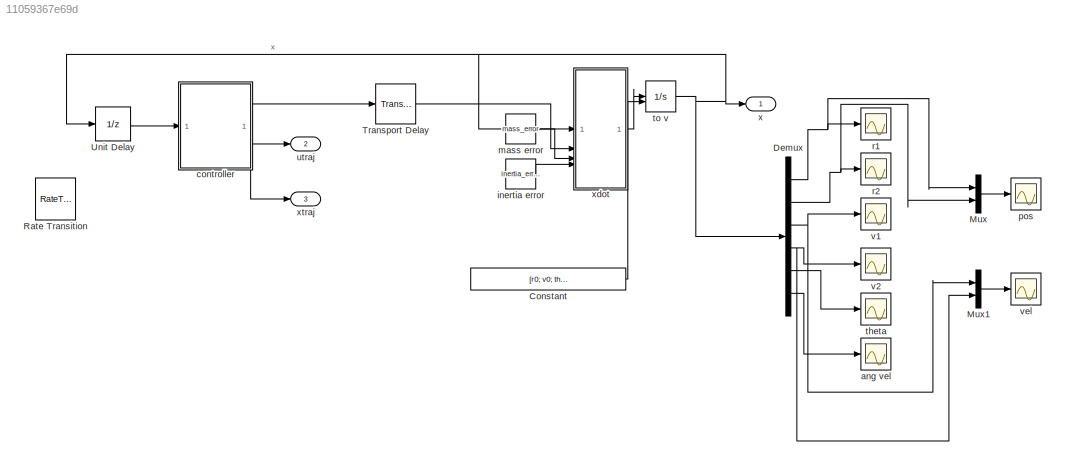
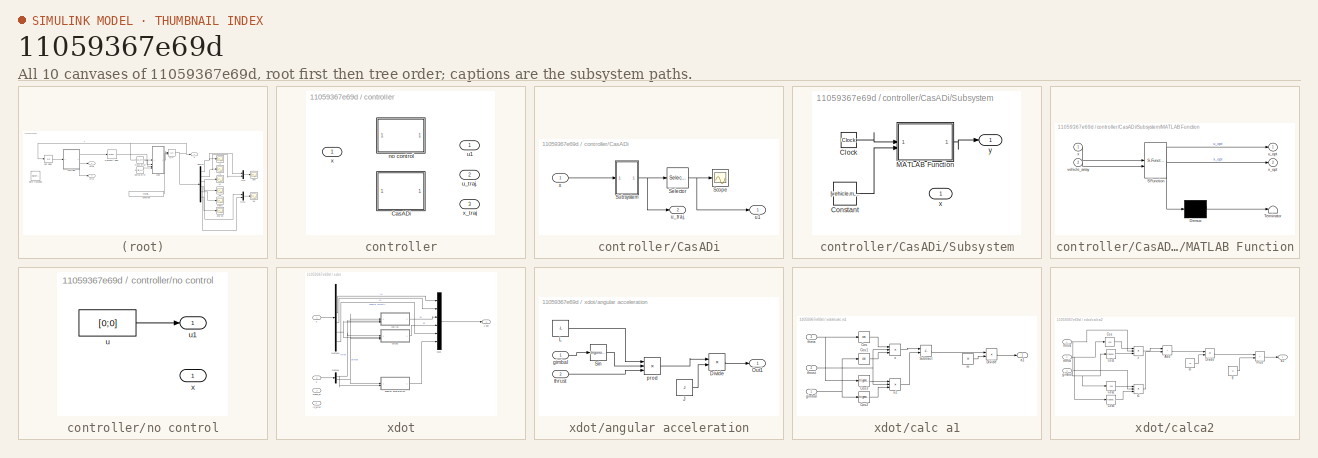
[diagram: thumbnail index - all 10 canvases of the model, root first then tree order]
MODEL slx_11059367e69d
KIND model
CONFIG AbsTol = auto
CONFIG EnableMultiTasking = off
CONFIG FixedStep = auto
CONFIG MaxStep = auto
CONFIG MinStep = auto
CONFIG RelTol = 1e-3
CONFIG SampleTimeConstraint = Unconstrained
CONFIG SolverName = VariableStepAuto
CONFIG StartTime = 0.0
CONFIG StopTime = 10.0
WORKSPACE source: mxarray member
WORKSPACE J = 1
WORKSPACE L = 1
WORKSPACE controller_type = []
WORKSPACE dtime = 0.01
WORKSPACE g = -9.8
WORKSPACE inertia_error = 0
WORKSPACE m = 1
WORKSPACE mass_error = 0
WORKSPACE optimization_time = 1
WORKSPACE r0 = [0 10]
WORKSPACE theta0 = 1.57079632679
WORKSPACE u0 = [9.8 0]
WORKSPACE v0 = [0 0]
WORKSPACE vehicle: object (value not decoded)
WORKSPACE w0 = 0
WORKSPACE x0 = 1
BLOCK [Constant] Constant
  Value = [r0; v0; theta0; w0]
BLOCK [Demux] Demux
  Outputs = 6
BLOCK [Mux] Mux
  DisplayOption = bar
  Inputs = 2
BLOCK [Mux] Mux1
  DisplayOption = bar
  Inputs = 2
BLOCK [RateTransition] Rate Transition
BLOCK [TransportDelay] Transport Delay
  DelayTime = optimization_time
  InitialOutput = u0
BLOCK [UnitDelay] Unit Delay
  HasFrameUpgradeWarning = on
  SampleTime = dtime
BLOCK [Scope] ang vel
  Floating = off
  NumInputPorts = 1
  ScopeSpecificationString = Simulink.scopes.TimeScopeBlockCfg('CurrentConfiguration', extmgr.ConfigurationSet(extmgr.Configuration('Core','General UI',true),extmgr.Configuration('Core','Source UI',true),extmgr.Configuration('Sources','WiredSimulink',true,'DataLoggingVariableName','ScopeData5'),extmgr.Configuration('Visuals','Time Domain',true,'SerializedDisplays',{struct('MinYLimReal','-1.00000','MaxYLimReal','1.00000','YLab...<+1455ch>
BLOCK [SubSystem] controller
  AllowZeroVariantControls = on
  PortSchema = {"entries":[{"content":{"sides":[{"content":{"connectorIds":["In1"]},"type":"ConnectorPlacement.EquallySpacedRectSide","uuid":"f7e8d604-ec29-4974-b1c0-93749a713244"},{"content":{"connectorIds":["Out1","Out2"],"side":"RIGHT"},"type":"ConnectorPlacement.EquallySpacedRectSide","uuid":"9418be0b-a493-45e6-a60f-5ee9e86d02f9"},{"content":{"side":"TOP"},"type":"ConnectorPlacement.EquallySpacedRectSide","u...<+379ch>
  Variant = on
  VariantControl = controller
BLOCK [SubSystem] controller/CasADi
  VariantControl = controller_type == ControllerType.CASADI
BLOCK [Scope] controller/CasADi/Scope
  Floating = off
  NumInputPorts = 1
  ScopeSpecificationString = Simulink.scopes.TimeScopeBlockCfg('CurrentConfiguration', extmgr.ConfigurationSet(extmgr.Configuration('Core','General UI',true),extmgr.Configuration('Core','Source UI',true),extmgr.Configuration('Sources','WiredSimulink',true,'DataLoggingVariableName','ScopeData1'),extmgr.Configuration('Visuals','Time Domain',true,'SerializedDisplays',{struct('MinYLimReal','-2.5','MaxYLimReal','12.5','YLabelReal'...<+1451ch>
BLOCK [Selector] controller/CasADi/Selector
  IndexOptions = Index vector (dialog),Select all
  Indices = [1],1
  InputPortWidth = 3
  NumberOfDimensions = 2
  OutputSizes = 1,1
BLOCK [SubSystem] controller/CasADi/Subsystem
BLOCK [Clock] controller/CasADi/Subsystem/Clock
BLOCK [Constant] controller/CasADi/Subsystem/Constant
  Value = [vehicle.m, vehicle.L, vehicle.max_gimbal, vehicle.min_thrust, vehicle.max_thrust]
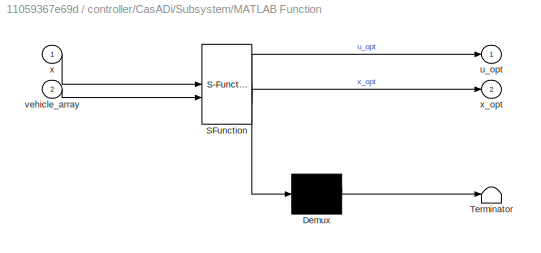
BLOCK [SubSystem] controller/CasADi/Subsystem/MATLAB Function
  ErrorFcn = Stateflow.Translate.translate
  PermitHierarchicalResolution = ExplicitOnly
  SFBlockType = MATLAB Function
  TreatAsAtomicUnit = on
BLOCK [Demux] controller/CasADi/Subsystem/MATLAB Function/ Demux 
  Outputs = 1
BLOCK [S-Function] controller/CasADi/Subsystem/MATLAB Function/ SFunction 
  EnableBusSupport = on
  FunctionName = sf_sfun
  PortCounts = [2 3]
  SFcnIsStateOwnerBlock = off
  SFunctionDeploymentMode = off
  Tag = Stateflow S-Function 2
BLOCK [Terminator] controller/CasADi/Subsystem/MATLAB Function/ Terminator 
BLOCK [Outport] controller/CasADi/Subsystem/MATLAB Function/u_opt
BLOCK [Inport] controller/CasADi/Subsystem/MATLAB Function/vehicle_array
  Port = 2
BLOCK [Inport] controller/CasADi/Subsystem/MATLAB Function/x
BLOCK [Outport] controller/CasADi/Subsystem/MATLAB Function/x_opt
  Port = 2
BLOCK [Inport] controller/CasADi/Subsystem/x
BLOCK [Outport] controller/CasADi/Subsystem/y
BLOCK [Outport] controller/CasADi/u1
BLOCK [Outport] controller/CasADi/u_traj.
  Port = 2
BLOCK [Inport] controller/CasADi/x
BLOCK [SubSystem] controller/no control
  VariantControl = controller_type == ControllerType.NO_CONTROL
BLOCK [Constant] controller/no control/u
  Value = [0;0]
BLOCK [Outport] controller/no control/u1
BLOCK [Inport] controller/no control/x
BLOCK [Outport] controller/u1
BLOCK [Outport] controller/u_traj.
  Port = 2
BLOCK [Inport] controller/x
BLOCK [Outport] controller/x_traj
  Port = 3
BLOCK [Constant] inertia error
  Value = inertia_error
BLOCK [Constant] mass error
  Value = mass_error
BLOCK [Scope] pos
  Floating = off
  NumInputPorts = 1
  ScopeSpecificationString = Simulink.scopes.TimeScopeBlockCfg('CurrentConfiguration', extmgr.ConfigurationSet(extmgr.Configuration('Core','General UI',true),extmgr.Configuration('Core','Source UI',true),extmgr.Configuration('Sources','WiredSimulink',true,'DataLoggingVariableName','ScopeData2'),extmgr.Configuration('Visuals','Time Domain',true,'SerializedDisplays',{struct('MinYLimReal','-74.14755','MaxYLimReal','667.32794','Y...<+1475ch>
BLOCK [Scope] r1
  Floating = off
  NumInputPorts = 1
  ScopeSpecificationString = Simulink.scopes.TimeScopeBlockCfg('CurrentConfiguration', extmgr.ConfigurationSet(extmgr.Configuration('Core','General UI',true),extmgr.Configuration('Core','Source UI',true),extmgr.Configuration('Sources','WiredSimulink',true),extmgr.Configuration('Visuals','Time Domain',true,'SerializedDisplays',{struct('MinYLimReal','-1.00000','MaxYLimReal','1.00000','YLabelReal','','MinYLimMag','0.00000','MaxY...<+1416ch>
BLOCK [Scope] r2
  Floating = off
  NumInputPorts = 1
  ScopeSpecificationString = Simulink.scopes.TimeScopeBlockCfg('CurrentConfiguration', extmgr.ConfigurationSet(extmgr.Configuration('Core','General UI',true),extmgr.Configuration('Core','Source UI',true),extmgr.Configuration('Sources','WiredSimulink',true,'DataLoggingVariableName','ScopeData1'),extmgr.Configuration('Visuals','Time Domain',true,'SerializedDisplays',{struct('MinYLimReal','-51.25','MaxYLimReal','561.25','YLabelR...<+1447ch>
BLOCK [Scope] theta
  Floating = off
  NumInputPorts = 1
  ScopeSpecificationString = Simulink.scopes.TimeScopeBlockCfg('CurrentConfiguration', extmgr.ConfigurationSet(extmgr.Configuration('Core','General UI',true),extmgr.Configuration('Core','Source UI',true),extmgr.Configuration('Sources','WiredSimulink',true,'DataLoggingVariableName','ScopeData4'),extmgr.Configuration('Visuals','Time Domain',true,'SerializedDisplays',{struct('MinYLimReal','0.5708','MaxYLimReal','2.5708','YLabelR...<+1445ch>
BLOCK [Integrator] to v
  InitialConditionSource = external
BLOCK [Outport] utraj
  Port = 2
BLOCK [Scope] v1
  Floating = off
  NumInputPorts = 1
  ScopeSpecificationString = Simulink.scopes.TimeScopeBlockCfg('CurrentConfiguration', extmgr.ConfigurationSet(extmgr.Configuration('Core','General UI',true),extmgr.Configuration('Core','Source UI',true),extmgr.Configuration('Sources','WiredSimulink',true,'DataLoggingVariableName','ScopeData2'),extmgr.Configuration('Visuals','Time Domain',true,'SerializedDisplays',{struct('MinYLimReal','-1.00000','MaxYLimReal','1.00000','YLab...<+1455ch>
BLOCK [Scope] v2
  Floating = off
  NumInputPorts = 1
  ScopeSpecificationString = Simulink.scopes.TimeScopeBlockCfg('CurrentConfiguration', extmgr.ConfigurationSet(extmgr.Configuration('Core','General UI',true),extmgr.Configuration('Core','Source UI',true),extmgr.Configuration('Sources','WiredSimulink',true,'DataLoggingVariableName','ScopeData3'),extmgr.Configuration('Visuals','Time Domain',true,'SerializedDisplays',{struct('MinYLimReal','-12.25','MaxYLimReal','110.25','YLabelR...<+1447ch>
BLOCK [Scope] vel
  Floating = off
  NumInputPorts = 1
  ScopeSpecificationString = Simulink.scopes.TimeScopeBlockCfg('CurrentConfiguration', extmgr.ConfigurationSet(extmgr.Configuration('Core','General UI',true),extmgr.Configuration('Core','Source UI',true),extmgr.Configuration('Sources','WiredSimulink',true,'DataLoggingVariableName','ScopeData1'),extmgr.Configuration('Visuals','Time Domain',true,'SerializedDisplays',{struct('MinYLimReal','-13.47612','MaxYLimReal','121.28505','Y...<+1475ch>
BLOCK [Outport] x
  SignalName = x
BLOCK [SubSystem] xdot
BLOCK [Demux] xdot/Demux
  Outputs = 2
BLOCK [Demux] xdot/Demux1
  Outputs = 6
BLOCK [Mux] xdot/Mux
  DisplayOption = bar
  Inputs = 6
BLOCK [SubSystem] xdot/angular acceleration
BLOCK [Product] xdot/angular acceleration/Divide
  Inputs = */
BLOCK [Constant] xdot/angular acceleration/J
  Value = J
BLOCK [Constant] xdot/angular acceleration/L
  Value = -L
BLOCK [Outport] xdot/angular acceleration/Out1
BLOCK [Trigonometry] xdot/angular acceleration/Sin
BLOCK [Inport] xdot/angular acceleration/gimbal
BLOCK [Product] xdot/angular acceleration/prod
  Inputs = 3
BLOCK [Inport] xdot/angular acceleration/thrust
  Port = 2
BLOCK [SubSystem] xdot/calc a1
BLOCK [Trigonometry] xdot/calc a1/Cos
  Operator = cos
BLOCK [Trigonometry] xdot/calc a1/Cos1
  Operator = cos
BLOCK [Trigonometry] xdot/calc a1/Cos2
BLOCK [Trigonometry] xdot/calc a1/Cos3
BLOCK [Product] xdot/calc a1/Divide
  Inputs = */
BLOCK [Sum] xdot/calc a1/Subtract
  IconShape = rectangular
  Inputs = +-
BLOCK [Outport] xdot/calc a1/a1
BLOCK [Inport] xdot/calc a1/gimbal
BLOCK [Constant] xdot/calc a1/m
  Value = m
BLOCK [Inport] xdot/calc a1/theta
  Port = 3
BLOCK [Inport] xdot/calc a1/thrust
  Port = 2
BLOCK [Product] xdot/calc a1/x
  Inputs = 3
BLOCK [Product] xdot/calc a1/x2
  Inputs = 3
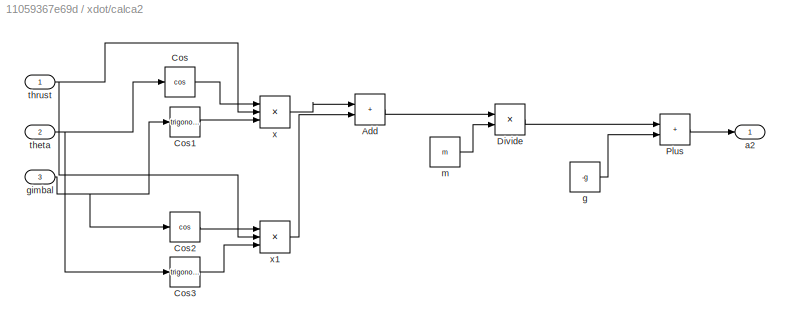
BLOCK [SubSystem] xdot/calca2
BLOCK [Sum] xdot/calca2/Add
  IconShape = rectangular
BLOCK [Trigonometry] xdot/calca2/Cos
  Operator = cos
BLOCK [Trigonometry] xdot/calca2/Cos1
BLOCK [Trigonometry] xdot/calca2/Cos2
  Operator = cos
BLOCK [Trigonometry] xdot/calca2/Cos3
BLOCK [Product] xdot/calca2/Divide
  Inputs = */
BLOCK [Sum] xdot/calca2/Plus
  IconShape = rectangular
BLOCK [Outport] xdot/calca2/a2
BLOCK [Constant] xdot/calca2/g
  Value = -g
BLOCK [Inport] xdot/calca2/gimbal
  Port = 3
BLOCK [Constant] xdot/calca2/m
  Value = m
BLOCK [Inport] xdot/calca2/theta
  Port = 2
BLOCK [Inport] xdot/calca2/thrust
BLOCK [Product] xdot/calca2/x
  Inputs = 3
BLOCK [Product] xdot/calca2/x1
  Inputs = 3
BLOCK [Inport] xdot/in_error
  Port = 4
BLOCK [Inport] xdot/mass_er
  Port = 3
BLOCK [Inport] xdot/u
  Port = 2
BLOCK [Inport] xdot/x
BLOCK [Outport] xdot/x dot
BLOCK [Outport] xtraj
  Port = 3
LINE Constant:1 -> to v:2
NET Demux:1 -> Mux:1, r1:1
NET Demux:2 -> Mux:2, r2:1
NET Demux:3 -> Mux1:1, v1:1
NET Demux:4 -> Mux1:2, v2:1
LINE Demux:5 -> theta:1
LINE Demux:6 -> ang vel:1
LINE Mux1:1 -> vel:1
LINE Mux:1 -> pos:1
LINE Transport Delay:1 -> xdot:2
LINE Unit Delay:1 -> controller:1
NET controller/CasADi/Selector:1 -> controller/CasADi/Scope:1, controller/CasADi/u1:1
LINE controller/CasADi/Subsystem/Clock:1 -> controller/CasADi/Subsystem/MATLAB Function:1
LINE controller/CasADi/Subsystem/Constant:1 -> controller/CasADi/Subsystem/MATLAB Function:2
LINE controller/CasADi/Subsystem/MATLAB Function:1 -> controller/CasADi/Subsystem/y:1
NET controller/CasADi/Subsystem:1 -> controller/CasADi/Selector:1, controller/CasADi/u_traj.:1
LINE controller/CasADi/x:1 -> controller/CasADi/Subsystem:1
LINE controller/no control/u:1 -> controller/no control/u1:1
LINE controller:1 -> Transport Delay:1
LINE controller:2 -> utraj:1
LINE controller:3 -> xtraj:1
LINE inertia error:1 -> xdot:4
LINE mass error:1 -> xdot:3
NET to v:1 -> Demux:1, Unit Delay:1, x:1, xdot:1
LINE xdot/Demux1:3 -> xdot/Mux:1
LINE xdot/Demux1:4 -> xdot/Mux:2
NET xdot/Demux1:5 -> xdot/calc a1:3, xdot/calca2:2
LINE xdot/Demux1:6 -> xdot/Mux:5
NET xdot/Demux:1 -> xdot/angular acceleration:2, xdot/calc a1:2, xdot/calca2:1
NET xdot/Demux:2 -> xdot/angular acceleration:1, xdot/calc a1:1, xdot/calca2:3
LINE xdot/Mux:1 -> xdot/x dot:1
LINE xdot/angular acceleration/Divide:1 -> xdot/angular acceleration/Out1:1
LINE xdot/angular acceleration/J:1 -> xdot/angular acceleration/Divide:2
LINE xdot/angular acceleration/L:1 -> xdot/angular acceleration/prod:1
LINE xdot/angular acceleration/Sin:1 -> xdot/angular acceleration/prod:2
LINE xdot/angular acceleration/gimbal:1 -> xdot/angular acceleration/Sin:1
LINE xdot/angular acceleration/prod:1 -> xdot/angular acceleration/Divide:1
LINE xdot/angular acceleration/thrust:1 -> xdot/angular acceleration/prod:3
LINE xdot/angular acceleration:1 -> xdot/Mux:6
LINE xdot/calc a1/Cos1:1 -> xdot/calc a1/x:3
LINE xdot/calc a1/Cos2:1 -> xdot/calc a1/x2:3
LINE xdot/calc a1/Cos3:1 -> xdot/calc a1/x2:1
LINE xdot/calc a1/Cos:1 -> xdot/calc a1/x:1
LINE xdot/calc a1/Divide:1 -> xdot/calc a1/a1:1
LINE xdot/calc a1/Subtract:1 -> xdot/calc a1/Divide:1
NET xdot/calc a1/gimbal:1 -> xdot/calc a1/Cos1:1, xdot/calc a1/Cos2:1
LINE xdot/calc a1/m:1 -> xdot/calc a1/Divide:2
NET xdot/calc a1/theta:1 -> xdot/calc a1/Cos3:1, xdot/calc a1/Cos:1
NET xdot/calc a1/thrust:1 -> xdot/calc a1/x2:2, xdot/calc a1/x:2
LINE xdot/calc a1/x2:1 -> xdot/calc a1/Subtract:2
LINE xdot/calc a1/x:1 -> xdot/calc a1/Subtract:1
LINE xdot/calc a1:1 -> xdot/Mux:3
LINE xdot/calca2/Add:1 -> xdot/calca2/Divide:1
LINE xdot/calca2/Cos1:1 -> xdot/calca2/x:3
LINE xdot/calca2/Cos2:1 -> xdot/calca2/x1:1
LINE xdot/calca2/Cos3:1 -> xdot/calca2/x1:3
LINE xdot/calca2/Cos:1 -> xdot/calca2/x:1
LINE xdot/calca2/Divide:1 -> xdot/calca2/Plus:1
LINE xdot/calca2/Plus:1 -> xdot/calca2/a2:1
LINE xdot/calca2/g:1 -> xdot/calca2/Plus:2
NET xdot/calca2/gimbal:1 -> xdot/calca2/Cos1:1, xdot/calca2/Cos2:1
LINE xdot/calca2/m:1 -> xdot/calca2/Divide:2
NET xdot/calca2/theta:1 -> xdot/calca2/Cos3:1, xdot/calca2/Cos:1
NET xdot/calca2/thrust:1 -> xdot/calca2/x1:2, xdot/calca2/x:2
LINE xdot/calca2/x1:1 -> xdot/calca2/Add:2
LINE xdot/calca2/x:1 -> xdot/calca2/Add:1
LINE xdot/calca2:1 -> xdot/Mux:4
LINE xdot/u:1 -> xdot/Demux:1
LINE xdot/x:1 -> xdot/Demux1:1
LINE xdot:1 -> to v:1
note: NET lines group one-source signal fan-out (src -> all destinations, sorted); 1:1 wires keep LINE
CHART controller/CasADi/Subsystem/MATLAB Function states=1 transitions=1
  STATE_LABEL 'eML_blk_kernel()'
  STATE_LABEL 'SCRIPT:\nfunction [u_opt, x_opt]= fcn(x, vehicle_array)\n    import casadi.*\nvehicle = Vehicle(vehicle_array(1),vehicle_array(2), vehicle_array(2)*2, vehicle_array(3), vehicle_array(4), vehicle_array(5));\n\n%[vehicle.m, vehicle.L, vehicle.max_gimbal, vehicle.min_thrust, vehicle.max_thrust]\n%[u_opt, x_opt] = TrajOptimizer(x, vehicle);\n    \n\n\n\n    %input current state, output control vector and potenti...<+3564ch>'
CHART  states=0 transitions=0
